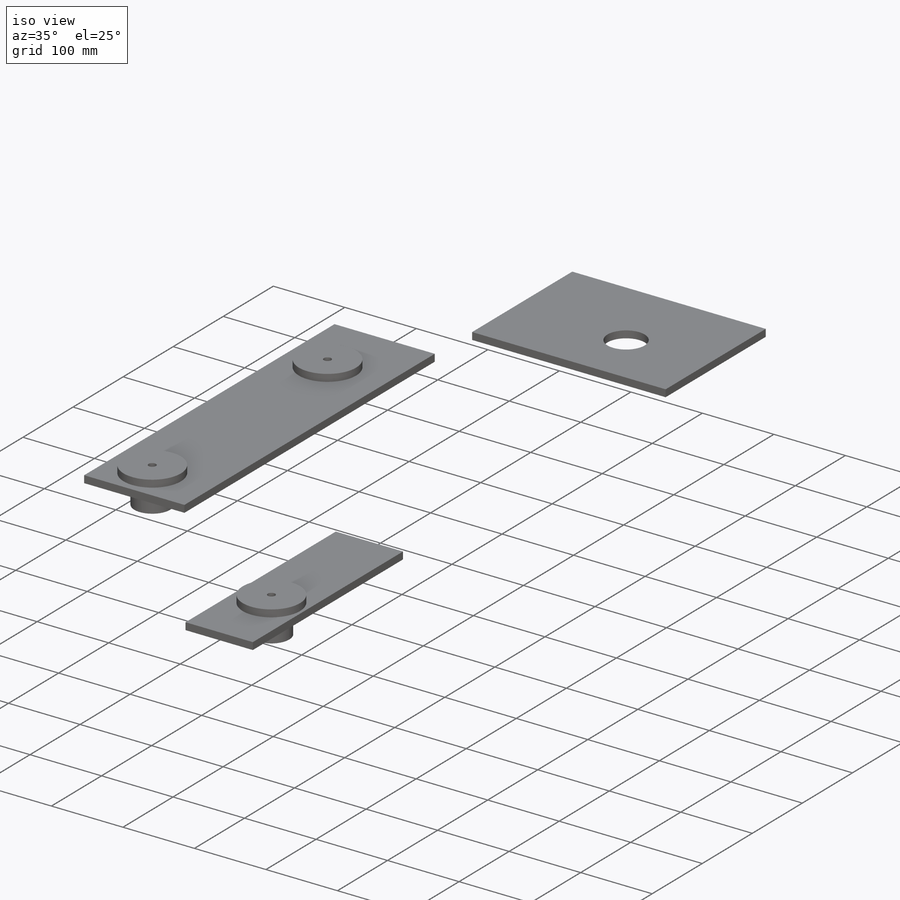
[diagram: iso view]
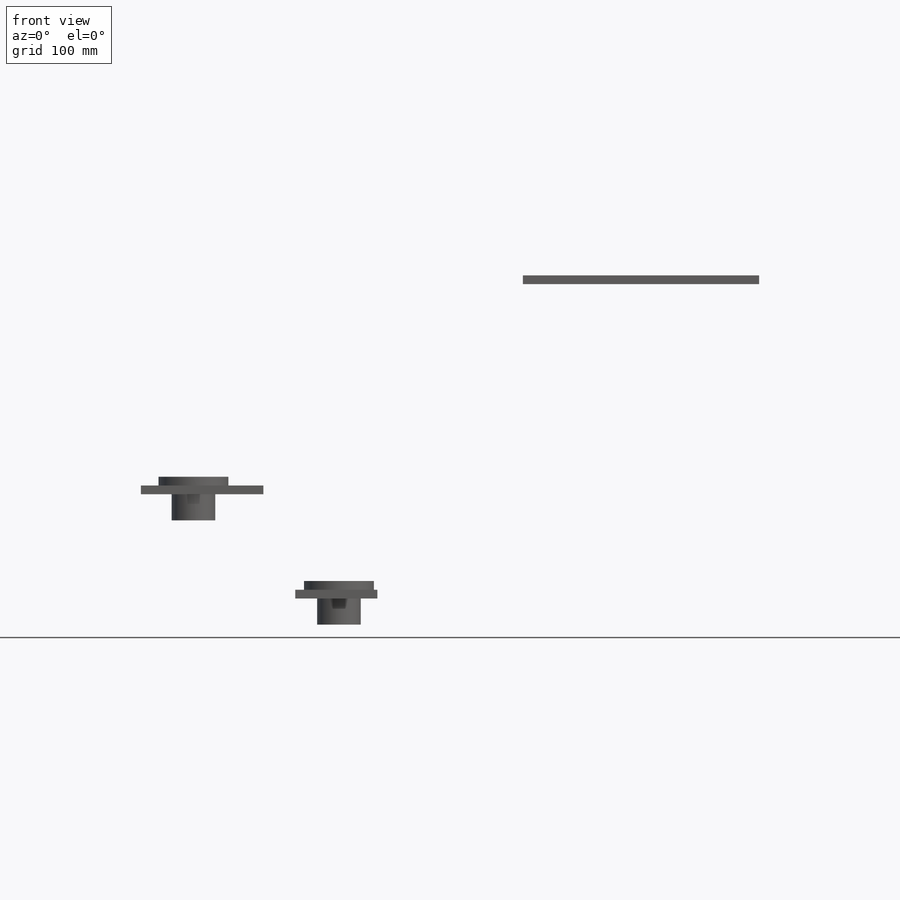
[diagram: front view]
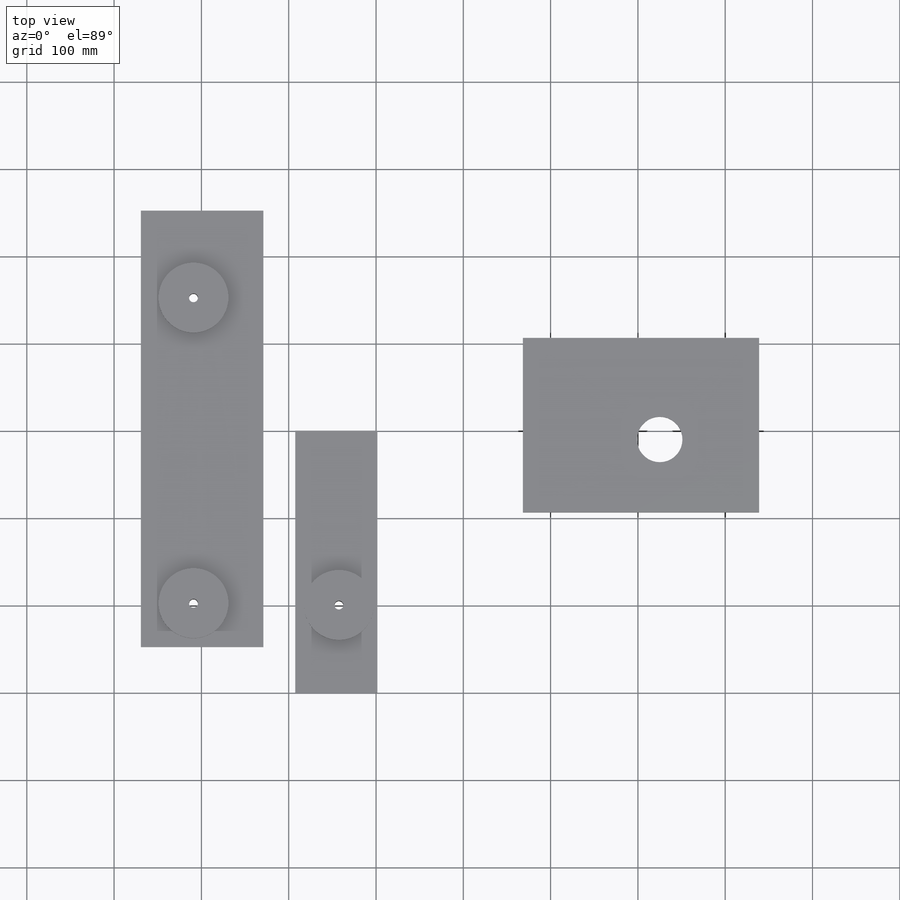
[diagram: top view]
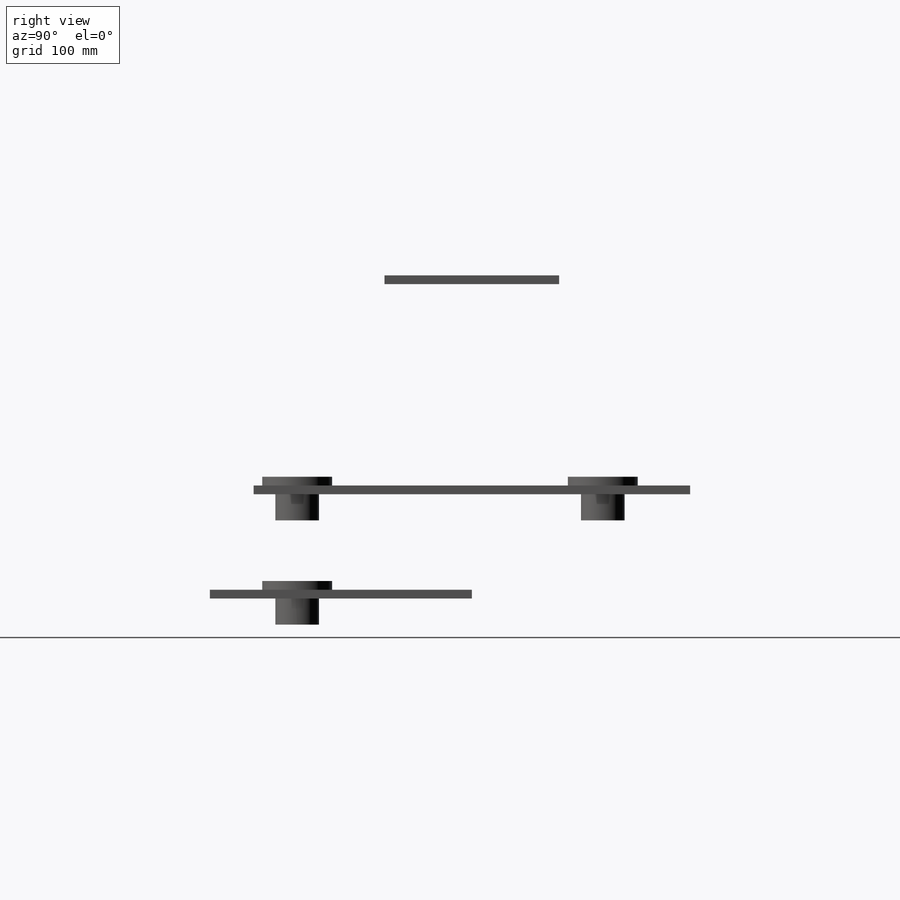
[diagram: right view]
SOLIDWORKS PART (.sldprt)
format: sldprt  version: not decoded by parser v0  size: 629,760 bytes
history: native  units: mm
features: sketch x10, plane x5, revolve x3, thread x3, hole x2, material x1 + 3 further entries (+10 scaffold rows collapsed)
feature tree (37):
  scaffold x10  (default folders/planes/origin — collapsed)
  material  "Material <nicht festgelegt>"
  "Zuschnittslistenelement2"
  "Zuschnittslistenelement3"
  "Zuschnittslistenelement4"
  plane  "Ebene vorne"
  plane  "Ebene oben"
  plane  "Ebene rechts"
  sketch  "Skizze2"  dims[D1=500.0mm D2=10.0mm D5=10.0mm D6=10.0mm D7=5.0mm]
  sketch  "Skizze2<3>"  dims[D1=300.0mm D5=10.0mm D6=10.0mm D7=5.0mm]
  sketch  "Skizze2<4>"  dims[D1=200.0mm D5=10.0mm D6=10.0mm D7=5.0mm]
  hole  "Ø0.15 (0.15) Durchmesser Bohrung1"  Diameter=52mm Depth=129.399519mm
  sketch  "3D-Skizze1"  dims[c1.D1=80.0mm c1.D2=50.0mm c1.D3=~136.716231mm c1.D4=~136.716231mm c2.D3=50.0mm c2.D4=100.0mm]
  sketch  "Skizze3"  dims[hole-wizard template sketch: 59 standard entries collapsed; hole parameters kept: c18.Bohrerdurchmesser=52.0mm c18.Bohrungstiefe=~129.399519mm]
  plane  "Ebene1"
  sketch  "Skizze4"  dims[D1=10.0mm D2=50.0mm D3=80.0mm D4=25.0mm]
  plane  "Ebene2"
  sketch  "Skizze5"
  revolve  "Rotation1"  Angle=360deg
  revolve  "Rotation2"  [1 undecoded]
  sketch  "Skizze4<3>"  dims[D1=360.0deg]
  revolve  "Rotation3"  Angle=360deg
  hole  "M12 Gewindebohrung1"  Diameter=10.2mm Depth=169.399519mm
  sketch  "3D-Skizze2"
  sketch  "Skizze6"  dims[hole-wizard template sketch: 59 standard entries collapsed; hole parameters kept: c18.Bohrerdurchmesser=10.2mm c18.Bohrungstiefe=~169.399519mm]
  thread  "Bohrungsgewinde1"  Diameter=12mm  [1 undecoded]
  thread  "Bohrungsgewinde2"  Diameter=12mm  [1 undecoded]
  thread  "Bohrungsgewinde3"  Diameter=12mm  [1 undecoded]
decode coverage: 15 of 18 modeling features carry decoded parameters; 3 rows unclassified (native names shown)
note: ~ marks probable driven/reference dimensions
note: 4 parameter values undecoded
note: suppression state not decoded; provenance and decode notes live in map.json
